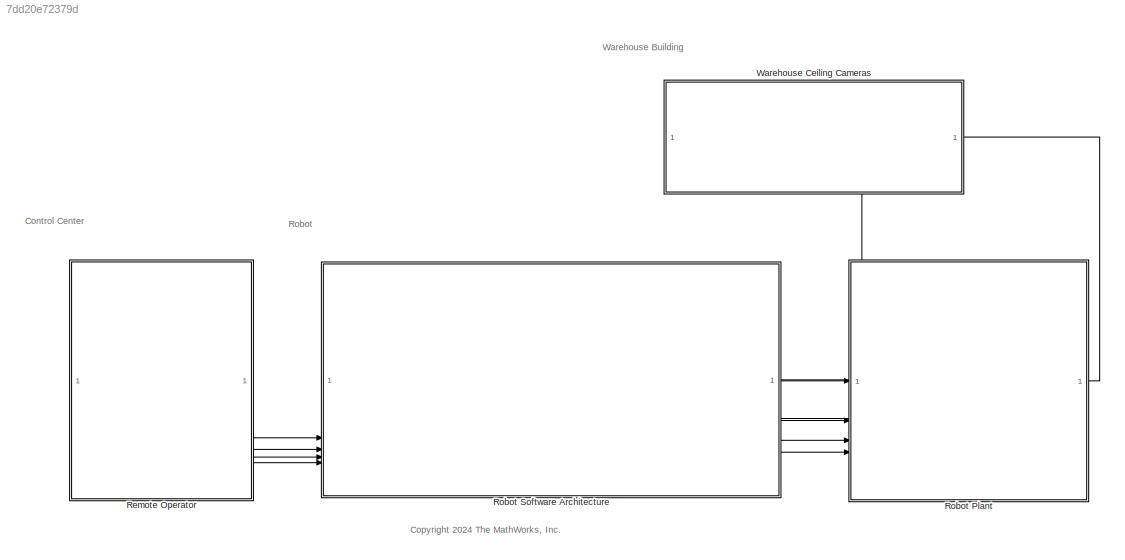
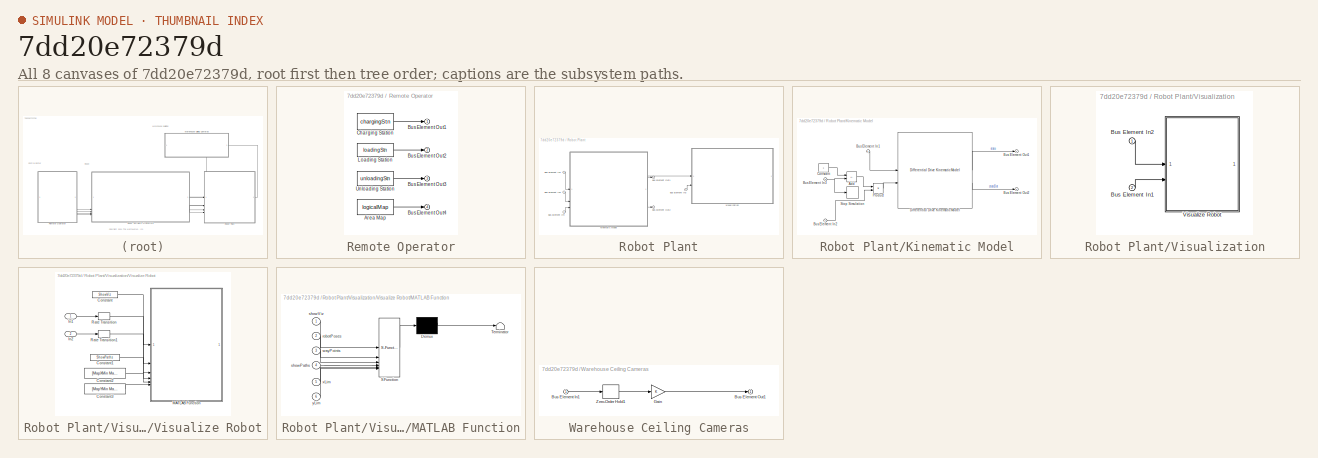
[diagram: thumbnail index - all 8 canvases of the model, root first then tree order]
MODEL slx_7dd20e72379d
KIND model
CONFIG AbsTol = auto
CONFIG EnableMultiTasking = off
CONFIG FixedStep = 0.1
CONFIG MaxStep = auto
CONFIG MinStep = auto
CONFIG PreLoadFcn = load warehouseMaps.mat logicalMap\nmap = binaryOccupancyMap(logicalMap);\n\nchargingStn = [5,5];\nloadingStn = [52,15];\nunloadingStn = [15,42];\n\nangularVelFaultGain = 2;
CONFIG RelTol = 1e-3
CONFIG SampleTimeConstraint = Unconstrained
CONFIG SolverName = FixedStepAuto
CONFIG StartFcn = close all
CONFIG StartTime = 0.0
CONFIG StopFcn = runIds = Simulink.sdi.getAllRunIDs;\nlastRun = Simulink.sdi.getRun(runIds(end));\ndata = lastRun.getSignalsByName('state').Values.Data;\nhold on;\nplot(data(:,1), data(:,2),'LineWidth',2);
CONFIG StopTime = 250
BLOCK [SubSystem] Remote Operator
  PortSchema = {"entries":[{"content":{"headerSize":26,"margin":15,"minimumSpacing":25,"sides":[{"content":{},"type":"ConnectorPlacement.EquallySpacedRectSide","uuid":"fee8ae93-d3af-4af3-aba8-8bbb6c49b1e5"},{"content":{"connectorIds":["Out1","Out2","Out3","Out4"],"side":"RIGHT"},"type":"ConnectorPlacement.EquallySpacedRectSide","uuid":"b0456245-7dcd-4816-a6fb-4f2f475968b2"},{"content":{"side":"TOP"},"type":"Conn...<+269ch>
BLOCK [Constant] Remote Operator/Area Map 
  SampleTime = 1
  Value = logicalMap
BLOCK [Outport] Remote Operator/Bus Element Out1
BLOCK [Outport] Remote Operator/Bus Element Out2
  Port = 2
BLOCK [Outport] Remote Operator/Bus Element Out3
  Port = 3
BLOCK [Outport] Remote Operator/Bus Element Out4
  Port = 4
BLOCK [Constant] Remote Operator/Charging Station 
  SampleTime = 1
  Value = chargingStn
BLOCK [Constant] Remote Operator/Loading Station
  Value = loadingStn
BLOCK [Constant] Remote Operator/Unloading Station
  SampleTime = 1
  Value = unloadingStn
BLOCK [SubSystem] Robot Plant
  PortSchema = {"entries":[{"content":{"headerSize":26,"margin":15,"minimumSpacing":25,"sides":[{"content":{"connectorIds":["Out2","In1","In2","In3","In4"]},"type":"ConnectorPlacement.EquallySpacedRectSide","uuid":"fee8ae93-d3af-4af3-aba8-8bbb6c49b1e5"},{"content":{"connectorIds":["Out1"],"side":"RIGHT"},"type":"ConnectorPlacement.EquallySpacedRectSide","uuid":"b0456245-7dcd-4816-a6fb-4f2f475968b2"},{"content":{...<+295ch>
BLOCK [Inport] Robot Plant/Bus Element In1
BLOCK [Inport] Robot Plant/Bus Element In2
  Port = 2
BLOCK [Inport] Robot Plant/Bus Element In3
  Port = 4
BLOCK [Inport] Robot Plant/Bus Element In4
  Port = 3
BLOCK [Outport] Robot Plant/Bus Element Out1
BLOCK [Outport] Robot Plant/Bus Element Out2
  Port = 2
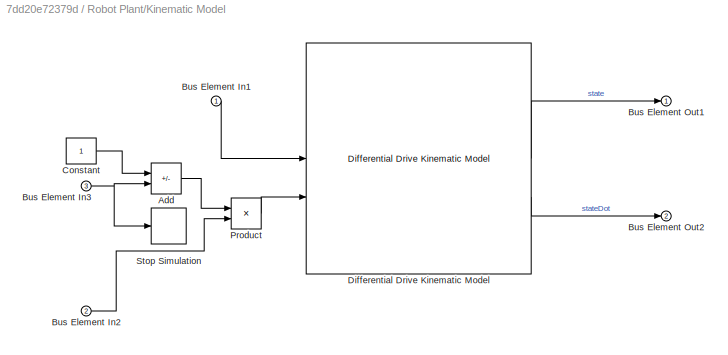
BLOCK [SubSystem] Robot Plant/Kinematic Model
  PortSchema = {"entries":[{"content":{"headerSize":26,"margin":15,"minimumSpacing":25,"sides":[{"content":{"connectorIds":["In1","In2","In3"]},"type":"ConnectorPlacement.EquallySpacedRectSide","uuid":"fee8ae93-d3af-4af3-aba8-8bbb6c49b1e5"},{"content":{"connectorIds":["Out1","Out2"],"side":"RIGHT"},"type":"ConnectorPlacement.EquallySpacedRectSide","uuid":"b0456245-7dcd-4816-a6fb-4f2f475968b2"},{"content":{"side"...<+289ch>
BLOCK [Sum] Robot Plant/Kinematic Model/Add
  IconShape = rectangular
  Inputs = +-
BLOCK [Inport] Robot Plant/Kinematic Model/Bus Element In1
BLOCK [Inport] Robot Plant/Kinematic Model/Bus Element In2
  Port = 2
BLOCK [Inport] Robot Plant/Kinematic Model/Bus Element In3
  Port = 3
BLOCK [Outport] Robot Plant/Kinematic Model/Bus Element Out1
BLOCK [Outport] Robot Plant/Kinematic Model/Bus Element Out2
  Port = 2
BLOCK [Constant] Robot Plant/Kinematic Model/Constant
BLOCK [Reference] Robot Plant/Kinematic Model/Differential Drive Kinematic Model   REF=robotmobilelib/Differential Drive Kinematic Model
  SourceBlock = robotmobilelib/Differential Drive Kinematic Model
  SourceType = Differential Drive Kinematic Model
BLOCK [Product] Robot Plant/Kinematic Model/Product
BLOCK [Stop] Robot Plant/Kinematic Model/Stop Simulation
BLOCK [SubSystem] Robot Plant/Visualization
  PortSchema = {"entries":[{"content":{"headerSize":26,"margin":15,"minimumSpacing":25,"sides":[{"content":{"connectorIds":["In1","In2"]},"type":"ConnectorPlacement.EquallySpacedRectSide","uuid":"fee8ae93-d3af-4af3-aba8-8bbb6c49b1e5"},{"content":{"side":"RIGHT"},"type":"ConnectorPlacement.EquallySpacedRectSide","uuid":"b0456245-7dcd-4816-a6fb-4f2f475968b2"},{"content":{"side":"TOP"},"type":"ConnectorPlacement.Eq...<+252ch>
BLOCK [Inport] Robot Plant/Visualization/Bus Element In1
  Port = 2
BLOCK [Inport] Robot Plant/Visualization/Bus Element In2
BLOCK [SubSystem] Robot Plant/Visualization/Visualize Robot
BLOCK [Constant] Robot Plant/Visualization/Visualize Robot/Constant
  Value = ShowViz
BLOCK [Constant] Robot Plant/Visualization/Visualize Robot/Constant1
  Value = ShowPaths
BLOCK [Constant] Robot Plant/Visualization/Visualize Robot/Constant2
  Value = [MapXMin MapXMax]
BLOCK [Constant] Robot Plant/Visualization/Visualize Robot/Constant3
  Value = [MapYMin MapYMax]
BLOCK [Inport] Robot Plant/Visualization/Visualize Robot/In1
BLOCK [Inport] Robot Plant/Visualization/Visualize Robot/In2
  Port = 2
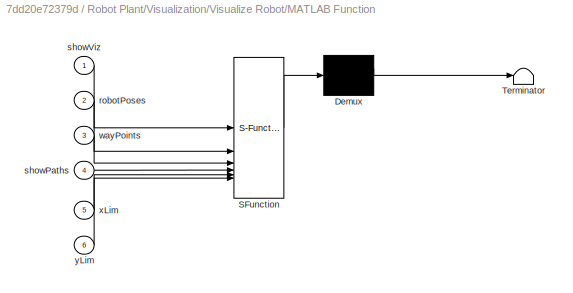
BLOCK [SubSystem] Robot Plant/Visualization/Visualize Robot/MATLAB Function
  ErrorFcn = Stateflow.Translate.translate
  PermitHierarchicalResolution = ExplicitOnly
  SFBlockType = MATLAB Function
  TreatAsAtomicUnit = on
BLOCK [Demux] Robot Plant/Visualization/Visualize Robot/MATLAB Function/ Demux 
  Outputs = 1
BLOCK [S-Function] Robot Plant/Visualization/Visualize Robot/MATLAB Function/ SFunction 
  EnableBusSupport = on
  FunctionName = sf_sfun
  Parameters = ChargingLocation,MeshSelectionIdx,SortingStation,UnloadingStation,logicalMap
  PortCounts = [6 1]
  SFcnIsStateOwnerBlock = off
  SFunctionDeploymentMode = off
  Tag = Stateflow S-Function 2
BLOCK [Terminator] Robot Plant/Visualization/Visualize Robot/MATLAB Function/ Terminator 
BLOCK [Inport] Robot Plant/Visualization/Visualize Robot/MATLAB Function/robotPoses
  Port = 2
BLOCK [Inport] Robot Plant/Visualization/Visualize Robot/MATLAB Function/showPaths
  Port = 4
BLOCK [Inport] Robot Plant/Visualization/Visualize Robot/MATLAB Function/showViz
BLOCK [Inport] Robot Plant/Visualization/Visualize Robot/MATLAB Function/wayPoints
  Port = 3
BLOCK [Inport] Robot Plant/Visualization/Visualize Robot/MATLAB Function/xLim
  Port = 5
BLOCK [Inport] Robot Plant/Visualization/Visualize Robot/MATLAB Function/yLim
  Port = 6
BLOCK [RateTransition] Robot Plant/Visualization/Visualize Robot/Rate Transition
BLOCK [RateTransition] Robot Plant/Visualization/Visualize Robot/Rate Transition1
BLOCK [SubSystem] Robot Software Architecture
  PortSchema = {"entries":[{"content":{"headerSize":26,"margin":15,"minimumSpacing":25,"sides":[{"content":{"connectorIds":["In3","In4","In5","In6"]},"type":"ConnectorPlacement.EquallySpacedRectSide","uuid":"fee8ae93-d3af-4af3-aba8-8bbb6c49b1e5"},{"content":{"connectorIds":["In1","Out1","Out4","Out2","Out3"],"side":"RIGHT"},"type":"ConnectorPlacement.EquallySpacedRectSide","uuid":"b0456245-7dcd-4816-a6fb-4f2f475...<+338ch>
  ReferencedSubsystem = WareHouseTaskRobotArchitecture
BLOCK [SubSystem] Warehouse Ceiling Cameras
  PortSchema = {"entries":[{"content":{"headerSize":26,"margin":15,"minimumSpacing":25,"sides":[{"content":{"connectorIds":["Out1"]},"type":"ConnectorPlacement.EquallySpacedRectSide","uuid":"5ccff003-76f7-4779-807a-91871d9674a7"},{"content":{"connectorIds":["In1"],"side":"RIGHT"},"type":"ConnectorPlacement.EquallySpacedRectSide","uuid":"6cd9e982-3620-451d-98aa-950993e654a7"},{"content":{"side":"TOP"},"type":"Con...<+396ch>
BLOCK [Inport] Warehouse Ceiling Cameras/Bus Element In1
BLOCK [Outport] Warehouse Ceiling Cameras/Bus Element Out1
BLOCK [Gain] Warehouse Ceiling Cameras/Gain
BLOCK [ZeroOrderHold] Warehouse Ceiling Cameras/Zero-Order Hold1
  SampleTime = -1
ANNOTATION (root): <copyright redacted>
ANNOTATION (root): Control Center
ANNOTATION (root): Robot
ANNOTATION (root): Warehouse Building
LINE Remote Operator/Area Map :1 -> Remote Operator/Bus Element Out4:1
LINE Remote Operator/Charging Station :1 -> Remote Operator/Bus Element Out1:1
LINE Remote Operator/Loading Station:1 -> Remote Operator/Bus Element Out2:1
LINE Remote Operator/Unloading Station:1 -> Remote Operator/Bus Element Out3:1
LINE Remote Operator:1 -> Robot Software Architecture:3
LINE Remote Operator:2 -> Robot Software Architecture:4
LINE Remote Operator:3 -> Robot Software Architecture:5
LINE Remote Operator:4 -> Robot Software Architecture:6
LINE Robot Plant/Bus Element In1:1 -> Robot Plant/Kinematic Model:1
LINE Robot Plant/Bus Element In2:1 -> Robot Plant/Kinematic Model:2
LINE Robot Plant/Bus Element In3:1 -> Robot Plant/Visualization:2
LINE Robot Plant/Bus Element In4:1 -> Robot Plant/Kinematic Model:3
LINE Robot Plant/Kinematic Model/Add:1 -> Robot Plant/Kinematic Model/Product:1
LINE Robot Plant/Kinematic Model/Bus Element In1:1 -> Robot Plant/Kinematic Model/Differential Drive Kinematic Model :1
LINE Robot Plant/Kinematic Model/Bus Element In2:1 -> Robot Plant/Kinematic Model/Product:2
NET Robot Plant/Kinematic Model/Bus Element In3:1 -> Robot Plant/Kinematic Model/Add:2, Robot Plant/Kinematic Model/Stop Simulation:1
LINE Robot Plant/Kinematic Model/Constant:1 -> Robot Plant/Kinematic Model/Add:1
LINE Robot Plant/Kinematic Model/Differential Drive Kinematic Model :1 -> Robot Plant/Kinematic Model/Bus Element Out1:1
LINE Robot Plant/Kinematic Model/Differential Drive Kinematic Model :2 -> Robot Plant/Kinematic Model/Bus Element Out2:1
LINE Robot Plant/Kinematic Model/Product:1 -> Robot Plant/Kinematic Model/Differential Drive Kinematic Model :2
NET Robot Plant/Kinematic Model:1 -> Robot Plant/Bus Element Out1:1, Robot Plant/Visualization:1
LINE Robot Plant/Kinematic Model:2 -> Robot Plant/Bus Element Out2:1
LINE Robot Plant/Visualization/Bus Element In1:1 -> Robot Plant/Visualization/Visualize Robot:2
LINE Robot Plant/Visualization/Bus Element In2:1 -> Robot Plant/Visualization/Visualize Robot:1
LINE Robot Plant/Visualization/Visualize Robot/Constant1:1 -> Robot Plant/Visualization/Visualize Robot/MATLAB Function:4
LINE Robot Plant/Visualization/Visualize Robot/Constant2:1 -> Robot Plant/Visualization/Visualize Robot/MATLAB Function:5
LINE Robot Plant/Visualization/Visualize Robot/Constant3:1 -> Robot Plant/Visualization/Visualize Robot/MATLAB Function:6
LINE Robot Plant/Visualization/Visualize Robot/Constant:1 -> Robot Plant/Visualization/Visualize Robot/MATLAB Function:1
LINE Robot Plant/Visualization/Visualize Robot/In1:1 -> Robot Plant/Visualization/Visualize Robot/Rate Transition:1
LINE Robot Plant/Visualization/Visualize Robot/In2:1 -> Robot Plant/Visualization/Visualize Robot/Rate Transition1:1
LINE Robot Plant/Visualization/Visualize Robot/Rate Transition1:1 -> Robot Plant/Visualization/Visualize Robot/MATLAB Function:3
LINE Robot Plant/Visualization/Visualize Robot/Rate Transition:1 -> Robot Plant/Visualization/Visualize Robot/MATLAB Function:2
LINE Robot Plant:1 -> Warehouse Ceiling Cameras:1
LINE Robot Plant:2 -> Robot Software Architecture:1
LINE Robot Software Architecture:1 -> Robot Plant:1
LINE Robot Software Architecture:2 -> Robot Plant:3
LINE Robot Software Architecture:3 -> Robot Plant:4
LINE Robot Software Architecture:4 -> Robot Plant:2
LINE Warehouse Ceiling Cameras/Bus Element In1:1 -> Warehouse Ceiling Cameras/Zero-Order Hold1:1
LINE Warehouse Ceiling Cameras/Gain:1 -> Warehouse Ceiling Cameras/Bus Element Out1:1
LINE Warehouse Ceiling Cameras/Zero-Order Hold1:1 -> Warehouse Ceiling Cameras/Gain:1
LINE Warehouse Ceiling Cameras:1 -> Robot Software Architecture:2
note: NET lines group one-source signal fan-out (src -> all destinations, sorted); 1:1 wires keep LINE
CHART Robot Plant/Visualization/Visualize Robot/MATLAB Function states=1 transitions=1
  STATE_LABEL 'eML_blk_kernel()'
  STATE_LABEL "SCRIPT:\nfunction simulationVisualization(showViz, robotPoses, wayPoints, logicalMap, ChargingLocation, UnloadingStation, SortingStation, showPaths, xLim, yLim, MeshSelectionIdx)\n%#codegen\n\n%% Setup\n\ncoder.extrinsic('exampleHelperVisualizeExecuteRobots');\npersistent f\nif isempty(f) && showViz\n    f = figure('units','normalized','outerposition',[0 0 0.75 0.75]);\n    title('Mobile Robot Motion');\n   ...<+615ch>"
CHART  states=0 transitions=0
